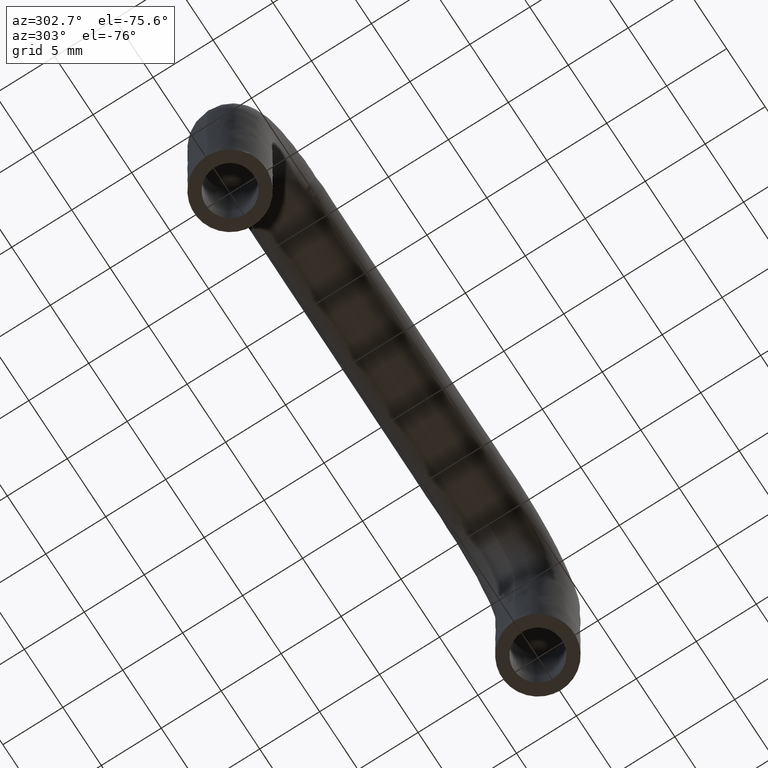
[diagram: clean part render]
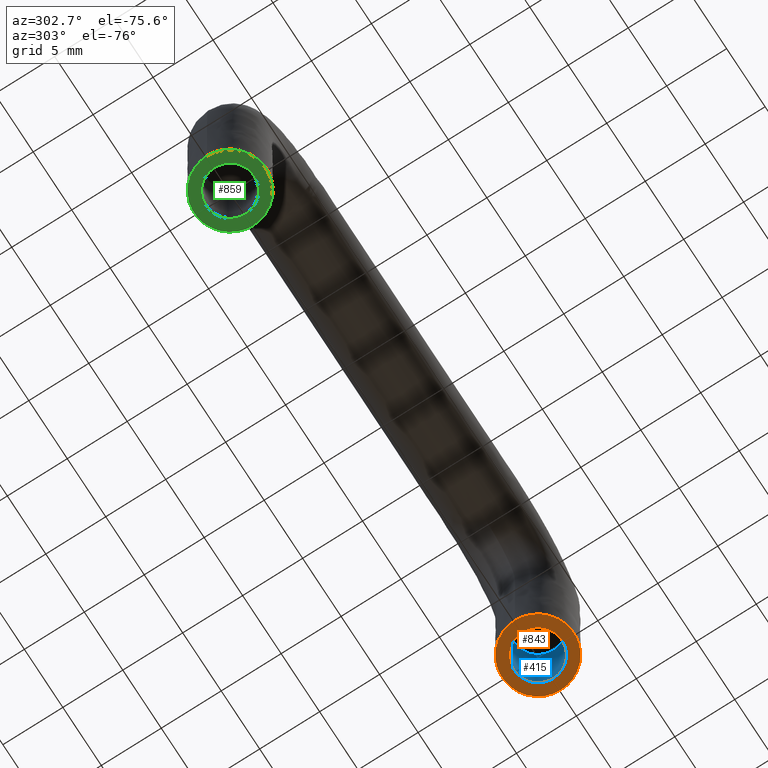
[diagram: same view with three faces highlighted in distinct colors, each labeled with its STEP entity id]
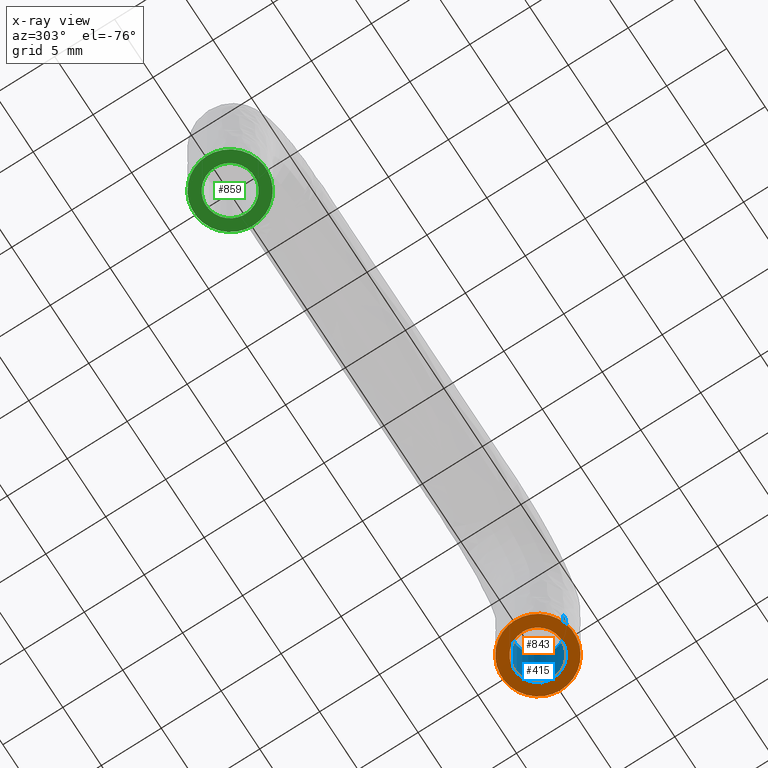
[diagram: x-ray of the same camera — body ghosted, the three highlighted faces saturated]
A machine part, auxiliary view with three faces highlighted in distinct colors.
The next image is the same camera in x-ray (body ghosted, the three faces saturated) — at least one of them is partly hidden behind the body in this view.
Their STEP definitions:

[orange] entity #843 — the highlighted face is a freeform B-spline surface patch.
#271=CARTESIAN_POINT('',(40.236068469343238,-1.986019052723800,4.259142E-017));
#272=VERTEX_POINT('',#271);
#278=CARTESIAN_POINT('',(38.0,0.0,0.0));
#279=VERTEX_POINT('',#278);
#280=CARTESIAN_POINT('',(40.236068469343238,-1.986019052723800,4.259142E-017));
#281=CARTESIAN_POINT('',(40.118448239333851,-2.000000000000000,0.0));
#282=CARTESIAN_POINT('',(40.0,-2.0,0.0));
#283=CARTESIAN_POINT('',(38.0,-2.000000000000000,0.0));
#284=CARTESIAN_POINT('',(38.0,0.0,0.0));
#292=(BOUNDED_CURVE()B_SPLINE_CURVE(2,(#280,#281,#282,#283,#284),.UNSPECIFIED.,.F.,.U.)B_SPLINE_CURVE_WITH_KNOTS((3,2,3),(0.229562473510587,0.250000000000000,0.500000000000000),.UNSPECIFIED.)CURVE()GEOMETRIC_REPRESENTATION_ITEM()RATIONAL_B_SPLINE_CURVE((0.956026754177973,0.976055948327722,1.0,0.707106781186548,1.0))REPRESENTATION_ITEM(''));
#293=EDGE_CURVE('',#272,#279,#292,.T.);
#295=CARTESIAN_POINT('',(39.877902920819302,1.996269596836946,4.163336E-017));
#296=VERTEX_POINT('',#295);
#297=CARTESIAN_POINT('',(38.0,0.0,0.0));
#298=CARTESIAN_POINT('',(38.0,1.881412133601800,0.0));
#299=CARTESIAN_POINT('',(39.877902920819302,1.996269596836946,4.163336E-017));
#307=(BOUNDED_CURVE()B_SPLINE_CURVE(2,(#297,#298,#299),.UNSPECIFIED.,.F.,.U.)B_SPLINE_CURVE_WITH_KNOTS((3,3),(0.500000000000000,0.739332962222782),.UNSPECIFIED.)CURVE()GEOMETRIC_REPRESENTATION_ITEM()RATIONAL_B_SPLINE_CURVE((1.0,0.719603993305643,0.976072041632083))REPRESENTATION_ITEM(''));
#308=EDGE_CURVE('',#279,#296,#307,.T.);
#382=CARTESIAN_POINT('',(42.0,0.0,0.0));
#383=VERTEX_POINT('',#382);
#384=CARTESIAN_POINT('',(39.877902920819302,1.996269596836945,4.163336E-017));
#385=CARTESIAN_POINT('',(39.938894473291526,2.000000000000000,0.0));
#386=CARTESIAN_POINT('',(40.0,2.0,0.0));
#387=CARTESIAN_POINT('',(42.000000000000007,2.000000000000000,0.0));
#388=CARTESIAN_POINT('',(42.0,0.0,0.0));
#396=(BOUNDED_CURVE()B_SPLINE_CURVE(2,(#384,#385,#386,#387,#388),.UNSPECIFIED.,.F.,.U.)B_SPLINE_CURVE_WITH_KNOTS((3,2,3),(0.739332962222782,0.750000000000000,1.0),.UNSPECIFIED.)CURVE()GEOMETRIC_REPRESENTATION_ITEM()RATIONAL_B_SPLINE_CURVE((0.976072041632082,0.987502787880904,1.0,0.707106781186548,1.0))REPRESENTATION_ITEM(''));
#397=EDGE_CURVE('',#296,#383,#396,.T.);
#399=CARTESIAN_POINT('',(42.0,0.0,0.0));
#400=CARTESIAN_POINT('',(42.0,-1.776349051849203,0.0));
#401=CARTESIAN_POINT('',(40.236068469343238,-1.986019052723800,4.259142E-017));
#409=(BOUNDED_CURVE()B_SPLINE_CURVE(2,(#399,#400,#401),.UNSPECIFIED.,.F.,.U.)B_SPLINE_CURVE_WITH_KNOTS((3,3),(0.0,0.229562473510587),.UNSPECIFIED.)CURVE()GEOMETRIC_REPRESENTATION_ITEM()RATIONAL_B_SPLINE_CURVE((1.0,0.731050832858825,0.956026754177973))REPRESENTATION_ITEM(''));
#410=EDGE_CURVE('',#383,#272,#409,.T.);
#593=CARTESIAN_POINT('',(43.0,3.673819E-016,1.681514E-014));
#594=VERTEX_POINT('',#593);
#617=CARTESIAN_POINT('',(37.0,-3.673819E-016,-1.681514E-014));
#618=VERTEX_POINT('',#617);
#619=CARTESIAN_POINT('',(43.0,4.005314E-016,-1.076612E-028));
#620=CARTESIAN_POINT('',(42.999999999999993,3.0,-1.076612E-028));
#621=CARTESIAN_POINT('',(40.0,3.0,-1.076612E-028));
#622=CARTESIAN_POINT('',(37.0,3.0,-1.076612E-028));
#623=CARTESIAN_POINT('',(37.0,4.005314E-016,-1.076612E-028));
#631=(BOUNDED_CURVE()B_SPLINE_CURVE(2,(#619,#620,#621,#622,#623),.UNSPECIFIED.,.F.,.U.)B_SPLINE_CURVE_WITH_KNOTS((3,2,3),(0.0,0.500000000000000,1.0),.UNSPECIFIED.)CURVE()GEOMETRIC_REPRESENTATION_ITEM()RATIONAL_B_SPLINE_CURVE((1.0,0.707106781186548,1.0,0.707106781186548,1.0))REPRESENTATION_ITEM(''));
#632=EDGE_CURVE('',#594,#618,#631,.T.);
#809=CARTESIAN_POINT('',(37.0,-8.010628E-016,-1.133057E-028));
#810=CARTESIAN_POINT('',(37.0,-3.0,-1.133057E-028));
#811=CARTESIAN_POINT('',(40.0,-3.000000000000001,-1.133057E-028));
#812=CARTESIAN_POINT('',(42.999999999999993,-3.0,-1.133057E-028));
#813=CARTESIAN_POINT('',(43.0,-8.010628E-016,-1.133057E-028));
#821=(BOUNDED_CURVE()B_SPLINE_CURVE(2,(#809,#810,#811,#812,#813),.UNSPECIFIED.,.F.,.U.)B_SPLINE_CURVE_WITH_KNOTS((3,2,3),(0.0,0.500000000000000,1.0),.UNSPECIFIED.)CURVE()GEOMETRIC_REPRESENTATION_ITEM()RATIONAL_B_SPLINE_CURVE((1.0,0.707106781186548,1.0,0.707106781186548,1.0))REPRESENTATION_ITEM(''));
#822=EDGE_CURVE('',#618,#594,#821,.T.);
#828=CARTESIAN_POINT('',(43.299699988370833,-3.299699988370804,-1.064334E-028));
#829=CARTESIAN_POINT('',(36.700299850696616,-3.299699988370804,-1.064334E-028));
#830=CARTESIAN_POINT('',(43.299699988370833,3.299700149303344,-1.064334E-028));
#831=CARTESIAN_POINT('',(36.700299850696616,3.299700149303344,-1.064334E-028));
#832=B_SPLINE_SURFACE_WITH_KNOTS('',1,1,((#828,#830),(#829,#831)),.UNSPECIFIED.,.F.,.F.,.U.,(2,2),(2,2),(0.0,6.599400137674209),(0.0,6.599400137674149),.UNSPECIFIED.);
#833=ORIENTED_EDGE('',*,*,#822,.F.);
#834=ORIENTED_EDGE('',*,*,#632,.F.);
#835=EDGE_LOOP('',(#833,#834));
#836=FACE_OUTER_BOUND('',#835,.T.);
#837=ORIENTED_EDGE('',*,*,#308,.F.);
#838=ORIENTED_EDGE('',*,*,#293,.F.);
#839=ORIENTED_EDGE('',*,*,#410,.F.);
#840=ORIENTED_EDGE('',*,*,#397,.F.);
#841=EDGE_LOOP('',(#837,#838,#839,#840));
#842=FACE_BOUND('',#841,.T.);
#843=ADVANCED_FACE('',(#836,#842),#832,.T.);

[blue] entity #415 — the highlighted face is a freeform B-spline surface patch.
#252=CARTESIAN_POINT('',(40.236068469343230,-1.986019052723801,8.0));
#253=VERTEX_POINT('',#252);
#271=CARTESIAN_POINT('',(40.236068469343238,-1.986019052723800,4.259142E-017));
#272=VERTEX_POINT('',#271);
#273=CARTESIAN_POINT('',(40.236068469343230,-1.986019052723801,8.0));
#274=CARTESIAN_POINT('',(40.236068469343238,-1.986019052723800,4.259142E-017));
#275=QUASI_UNIFORM_CURVE('',1,(#273,#274),.UNSPECIFIED.,.F.,.U.);
#276=EDGE_CURVE('',#253,#272,#275,.T.);
#295=CARTESIAN_POINT('',(39.877902920819302,1.996269596836946,4.163336E-017));
#296=VERTEX_POINT('',#295);
#310=CARTESIAN_POINT('',(39.877902920819302,1.996269596836946,8.0));
#311=VERTEX_POINT('',#310);
#312=CARTESIAN_POINT('',(39.877902920819302,1.996269596836946,8.0));
#313=CARTESIAN_POINT('',(39.877902920819302,1.996269596836946,4.163336E-017));
#314=QUASI_UNIFORM_CURVE('',1,(#312,#313),.UNSPECIFIED.,.F.,.U.);
#315=EDGE_CURVE('',#311,#296,#314,.T.);
#333=CARTESIAN_POINT('',(39.877902920930289,1.996269596843733,8.199999999999999));
#334=CARTESIAN_POINT('',(41.874172517774021,2.118366675913447,8.199999999999999));
#335=CARTESIAN_POINT('',(41.996269596843732,0.122097079069714,8.199999999999999));
#336=CARTESIAN_POINT('',(42.111572393465053,-1.763086981679002,8.199999999999999));
#337=CARTESIAN_POINT('',(40.236068469313508,-1.986019052727332,8.200000000000001));
#338=CARTESIAN_POINT('',(39.877902920930289,1.996269596843733,-0.205000000000000));
#339=CARTESIAN_POINT('',(41.874172517774021,2.118366675913447,-0.205000000000000));
#340=CARTESIAN_POINT('',(41.996269596843732,0.122097079069714,-0.205000000000000));
#341=CARTESIAN_POINT('',(42.111572393465053,-1.763086981679002,-0.205000000000000));
#342=CARTESIAN_POINT('',(40.236068469313508,-1.986019052727332,-0.205000000000000));
#350=(BOUNDED_SURFACE()B_SPLINE_SURFACE(2,1,((#333,#338),(#334,#339),(#335,#340),(#336,#341),(#337,#342)),.UNSPECIFIED.,.F.,.F.,.U.)B_SPLINE_SURFACE_WITH_KNOTS((3,2,3),(2,2),(0.0,3.313708498984749,6.494868658010108),(0.0,8.404999999999999),.UNSPECIFIED.)GEOMETRIC_REPRESENTATION_ITEM()RATIONAL_B_SPLINE_SURFACE(((1.0,1.0),(0.707106781186548,0.707106781186548),(1.0,1.0),(0.718822509939086,0.718822509939086),(0.977505800795127,0.977505800795127)))REPRESENTATION_ITEM('')SURFACE());
#351=CARTESIAN_POINT('',(42.0,0.0,8.0));
#352=VERTEX_POINT('',#351);
#353=CARTESIAN_POINT('',(42.0,0.0,8.0));
#354=CARTESIAN_POINT('',(42.0,-1.776349051849208,8.0));
#355=CARTESIAN_POINT('',(40.236068469343230,-1.986019052723801,8.0));
#363=(BOUNDED_CURVE()B_SPLINE_CURVE(2,(#353,#354,#355),.UNSPECIFIED.,.F.,.U.)B_SPLINE_CURVE_WITH_KNOTS((3,3),(0.0,0.229562473510587),.UNSPECIFIED.)CURVE()GEOMETRIC_REPRESENTATION_ITEM()RATIONAL_B_SPLINE_CURVE((1.0,0.731050832858825,0.956026754177974))REPRESENTATION_ITEM(''));
#364=EDGE_CURVE('',#352,#253,#363,.T.);
#365=ORIENTED_EDGE('',*,*,#364,.F.);
#366=CARTESIAN_POINT('',(39.877902920819295,1.996269596836946,8.0));
#367=CARTESIAN_POINT('',(39.938894473291533,2.000000000000000,8.0));
#368=CARTESIAN_POINT('',(40.0,2.0,8.0));
#369=CARTESIAN_POINT('',(42.000000000000007,2.000000000000000,8.0));
#370=CARTESIAN_POINT('',(42.0,0.0,8.0));
#378=(BOUNDED_CURVE()B_SPLINE_CURVE(2,(#366,#367,#368,#369,#370),.UNSPECIFIED.,.F.,.U.)B_SPLINE_CURVE_WITH_KNOTS((3,2,3),(0.739332962222782,0.750000000000000,1.0),.UNSPECIFIED.)CURVE()GEOMETRIC_REPRESENTATION_ITEM()RATIONAL_B_SPLINE_CURVE((0.976072041632082,0.987502787880904,1.0,0.707106781186548,1.0))REPRESENTATION_ITEM(''));
#379=EDGE_CURVE('',#311,#352,#378,.T.);
#380=ORIENTED_EDGE('',*,*,#379,.F.);
#381=ORIENTED_EDGE('',*,*,#315,.T.);
#382=CARTESIAN_POINT('',(42.0,0.0,0.0));
#383=VERTEX_POINT('',#382);
#384=CARTESIAN_POINT('',(39.877902920819302,1.996269596836945,4.163336E-017));
#385=CARTESIAN_POINT('',(39.938894473291526,2.000000000000000,0.0));
#386=CARTESIAN_POINT('',(40.0,2.0,0.0));
#387=CARTESIAN_POINT('',(42.000000000000007,2.000000000000000,0.0));
#388=CARTESIAN_POINT('',(42.0,0.0,0.0));
#396=(BOUNDED_CURVE()B_SPLINE_CURVE(2,(#384,#385,#386,#387,#388),.UNSPECIFIED.,.F.,.U.)B_SPLINE_CURVE_WITH_KNOTS((3,2,3),(0.739332962222782,0.750000000000000,1.0),.UNSPECIFIED.)CURVE()GEOMETRIC_REPRESENTATION_ITEM()RATIONAL_B_SPLINE_CURVE((0.976072041632082,0.987502787880904,1.0,0.707106781186548,1.0))REPRESENTATION_ITEM(''));
#397=EDGE_CURVE('',#296,#383,#396,.T.);
#398=ORIENTED_EDGE('',*,*,#397,.T.);
#399=CARTESIAN_POINT('',(42.0,0.0,0.0));
#400=CARTESIAN_POINT('',(42.0,-1.776349051849203,0.0));
#401=CARTESIAN_POINT('',(40.236068469343238,-1.986019052723800,4.259142E-017));
#409=(BOUNDED_CURVE()B_SPLINE_CURVE(2,(#399,#400,#401),.UNSPECIFIED.,.F.,.U.)B_SPLINE_CURVE_WITH_KNOTS((3,3),(0.0,0.229562473510587),.UNSPECIFIED.)CURVE()GEOMETRIC_REPRESENTATION_ITEM()RATIONAL_B_SPLINE_CURVE((1.0,0.731050832858825,0.956026754177973))REPRESENTATION_ITEM(''));
#410=EDGE_CURVE('',#383,#272,#409,.T.);
#411=ORIENTED_EDGE('',*,*,#410,.T.);
#412=ORIENTED_EDGE('',*,*,#276,.F.);
#413=EDGE_LOOP('',(#365,#380,#381,#398,#411,#412));
#414=FACE_OUTER_BOUND('',#413,.T.);
#415=ADVANCED_FACE('',(#414),#350,.F.);

[green] entity #859 — the highlighted face is a freeform B-spline surface patch.
#85=CARTESIAN_POINT('',(0.236068469343232,-1.986019052723801,4.259142E-017));
#86=VERTEX_POINT('',#85);
#92=CARTESIAN_POINT('',(-2.0,0.0,0.0));
#93=VERTEX_POINT('',#92);
#94=CARTESIAN_POINT('',(0.236068469343232,-1.986019052723800,4.259142E-017));
#95=CARTESIAN_POINT('',(0.118448239333849,-2.0,0.0));
#96=CARTESIAN_POINT('',(0.0,-2.0,0.0));
#97=CARTESIAN_POINT('',(-2.000000000000000,-2.000000000000000,0.0));
#98=CARTESIAN_POINT('',(-2.0,0.0,0.0));
#106=(BOUNDED_CURVE()B_SPLINE_CURVE(2,(#94,#95,#96,#97,#98),.UNSPECIFIED.,.F.,.U.)B_SPLINE_CURVE_WITH_KNOTS((3,2,3),(0.229562473510587,0.250000000000000,0.500000000000000),.UNSPECIFIED.)CURVE()GEOMETRIC_REPRESENTATION_ITEM()RATIONAL_B_SPLINE_CURVE((0.956026754177973,0.976055948327722,1.0,0.707106781186548,1.0))REPRESENTATION_ITEM(''));
#107=EDGE_CURVE('',#86,#93,#106,.T.);
#109=CARTESIAN_POINT('',(-0.122097079180703,1.996269596836946,4.163336E-017));
#110=VERTEX_POINT('',#109);
#111=CARTESIAN_POINT('',(-2.0,0.0,0.0));
#112=CARTESIAN_POINT('',(-2.000000000000000,1.881412133601800,0.0));
#113=CARTESIAN_POINT('',(-0.122097079180703,1.996269596836946,4.163336E-017));
#121=(BOUNDED_CURVE()B_SPLINE_CURVE(2,(#111,#112,#113),.UNSPECIFIED.,.F.,.U.)B_SPLINE_CURVE_WITH_KNOTS((3,3),(0.500000000000000,0.739332962222782),.UNSPECIFIED.)CURVE()GEOMETRIC_REPRESENTATION_ITEM()RATIONAL_B_SPLINE_CURVE((1.0,0.719603993305643,0.976072041632083))REPRESENTATION_ITEM(''));
#122=EDGE_CURVE('',#93,#110,#121,.T.);
#196=CARTESIAN_POINT('',(2.0,0.0,0.0));
#197=VERTEX_POINT('',#196);
#198=CARTESIAN_POINT('',(-0.122097079180703,1.996269596836945,4.163336E-017));
#199=CARTESIAN_POINT('',(-0.061105526708478,2.000000000000000,0.0));
#200=CARTESIAN_POINT('',(0.0,2.0,0.0));
#201=CARTESIAN_POINT('',(2.000000000000000,2.000000000000000,0.0));
#202=CARTESIAN_POINT('',(2.0,0.0,0.0));
#210=(BOUNDED_CURVE()B_SPLINE_CURVE(2,(#198,#199,#200,#201,#202),.UNSPECIFIED.,.F.,.U.)B_SPLINE_CURVE_WITH_KNOTS((3,2,3),(0.739332962222782,0.750000000000000,1.0),.UNSPECIFIED.)CURVE()GEOMETRIC_REPRESENTATION_ITEM()RATIONAL_B_SPLINE_CURVE((0.976072041632081,0.987502787880903,1.0,0.707106781186548,1.0))REPRESENTATION_ITEM(''));
#211=EDGE_CURVE('',#110,#197,#210,.T.);
#213=CARTESIAN_POINT('',(2.0,0.0,0.0));
#214=CARTESIAN_POINT('',(2.0,-1.776349051849207,0.0));
#215=CARTESIAN_POINT('',(0.236068469343232,-1.986019052723801,4.259142E-017));
#223=(BOUNDED_CURVE()B_SPLINE_CURVE(2,(#213,#214,#215),.UNSPECIFIED.,.F.,.U.)B_SPLINE_CURVE_WITH_KNOTS((3,3),(0.0,0.229562473510587),.UNSPECIFIED.)CURVE()GEOMETRIC_REPRESENTATION_ITEM()RATIONAL_B_SPLINE_CURVE((1.0,0.731050832858825,0.956026754177973))REPRESENTATION_ITEM(''));
#224=EDGE_CURVE('',#197,#86,#223,.T.);
#574=CARTESIAN_POINT('',(-3.0,3.673819E-016,0.0));
#575=VERTEX_POINT('',#574);
#576=CARTESIAN_POINT('',(3.0,-3.673819E-016,0.0));
#577=VERTEX_POINT('',#576);
#578=CARTESIAN_POINT('',(-3.0,4.005314E-016,0.0));
#579=CARTESIAN_POINT('',(-3.0,3.0,0.0));
#580=CARTESIAN_POINT('',(9.184548E-017,3.0,0.0));
#581=CARTESIAN_POINT('',(3.0,3.0,0.0));
#582=CARTESIAN_POINT('',(3.0,4.005314E-016,0.0));
#590=(BOUNDED_CURVE()B_SPLINE_CURVE(2,(#578,#579,#580,#581,#582),.UNSPECIFIED.,.F.,.U.)B_SPLINE_CURVE_WITH_KNOTS((3,2,3),(0.0,0.500000000000000,1.0),.UNSPECIFIED.)CURVE()GEOMETRIC_REPRESENTATION_ITEM()RATIONAL_B_SPLINE_CURVE((1.0,0.707106781186548,1.0,0.707106781186548,1.0))REPRESENTATION_ITEM(''));
#591=EDGE_CURVE('',#575,#577,#590,.T.);
#793=CARTESIAN_POINT('',(3.0,-3.673819E-016,0.0));
#794=CARTESIAN_POINT('',(2.999999999999999,-3.0,0.0));
#795=CARTESIAN_POINT('',(-4.923769E-016,-3.0,0.0));
#796=CARTESIAN_POINT('',(-3.0,-3.0,0.0));
#797=CARTESIAN_POINT('',(-3.0,-3.673819E-016,0.0));
#805=(BOUNDED_CURVE()B_SPLINE_CURVE(2,(#793,#794,#795,#796,#797),.UNSPECIFIED.,.F.,.U.)B_SPLINE_CURVE_WITH_KNOTS((3,2,3),(0.0,0.500000000000000,1.0),.UNSPECIFIED.)CURVE()GEOMETRIC_REPRESENTATION_ITEM()RATIONAL_B_SPLINE_CURVE((1.0,0.707106781186548,1.0,0.707106781186548,1.0))REPRESENTATION_ITEM(''));
#806=EDGE_CURVE('',#577,#575,#805,.T.);
#844=CARTESIAN_POINT('',(-3.299699988370835,-3.299699988370803,0.0));
#845=CARTESIAN_POINT('',(3.299700149303376,-3.299699988370803,0.0));
#846=CARTESIAN_POINT('',(-3.299699988370835,3.299700149303345,0.0));
#847=CARTESIAN_POINT('',(3.299700149303376,3.299700149303344,0.0));
#848=B_SPLINE_SURFACE_WITH_KNOTS('',1,1,((#844,#846),(#845,#847)),.UNSPECIFIED.,.F.,.F.,.U.,(2,2),(2,2),(0.0,6.599400137674212),(0.0,6.599400137674149),.UNSPECIFIED.);
#849=ORIENTED_EDGE('',*,*,#806,.T.);
#850=ORIENTED_EDGE('',*,*,#591,.T.);
#851=EDGE_LOOP('',(#849,#850));
#852=FACE_OUTER_BOUND('',#851,.T.);
#853=ORIENTED_EDGE('',*,*,#122,.F.);
#854=ORIENTED_EDGE('',*,*,#107,.F.);
#855=ORIENTED_EDGE('',*,*,#224,.F.);
#856=ORIENTED_EDGE('',*,*,#211,.F.);
#857=EDGE_LOOP('',(#853,#854,#855,#856));
#858=FACE_BOUND('',#857,.T.);
#859=ADVANCED_FACE('',(#852,#858),#848,.F.);